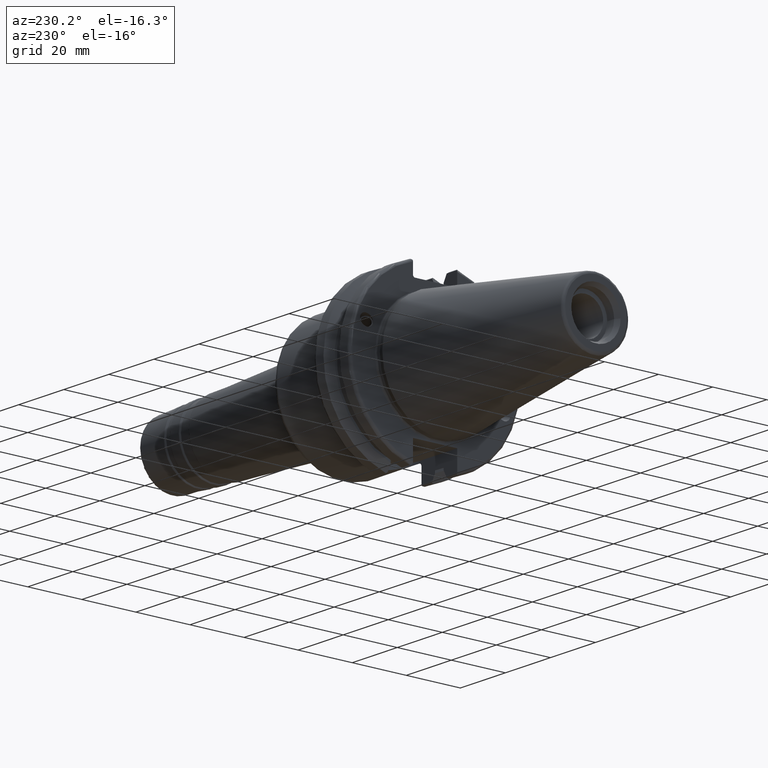
[diagram: clean part render]
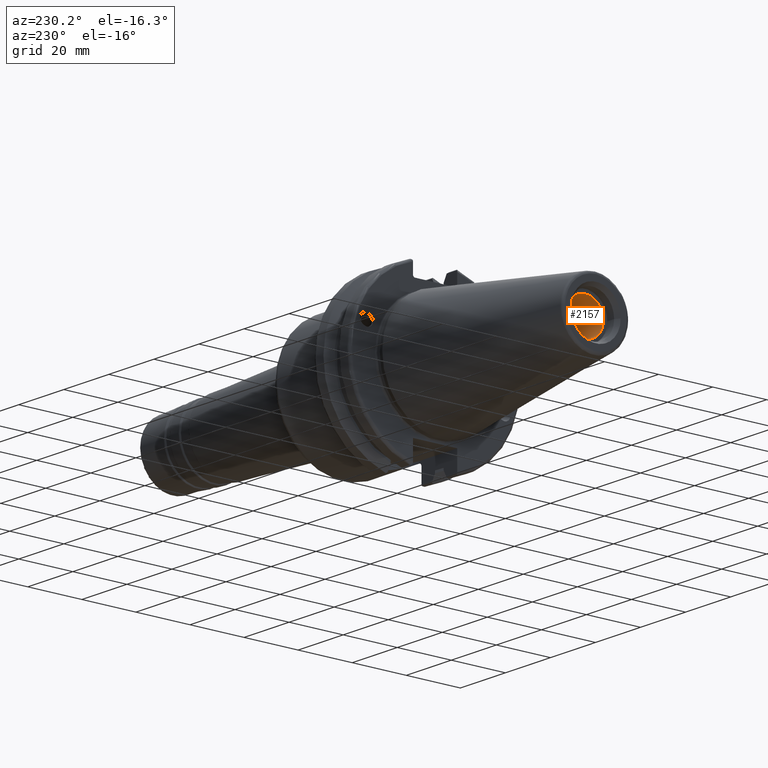
[diagram: same view with one face highlighted and labeled with its STEP entity id]
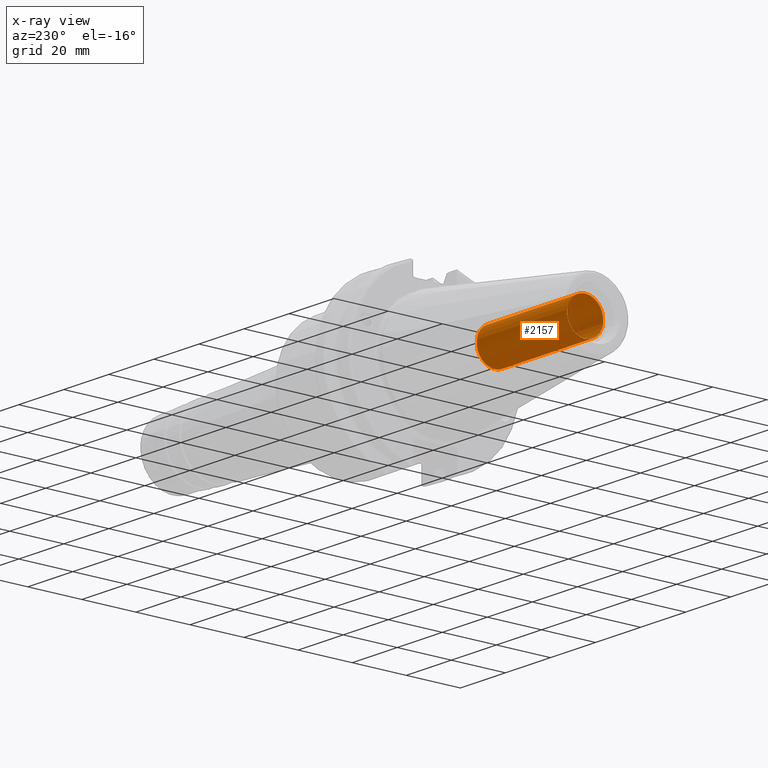
[diagram: x-ray of the same camera — body ghosted, the highlighted face saturated]
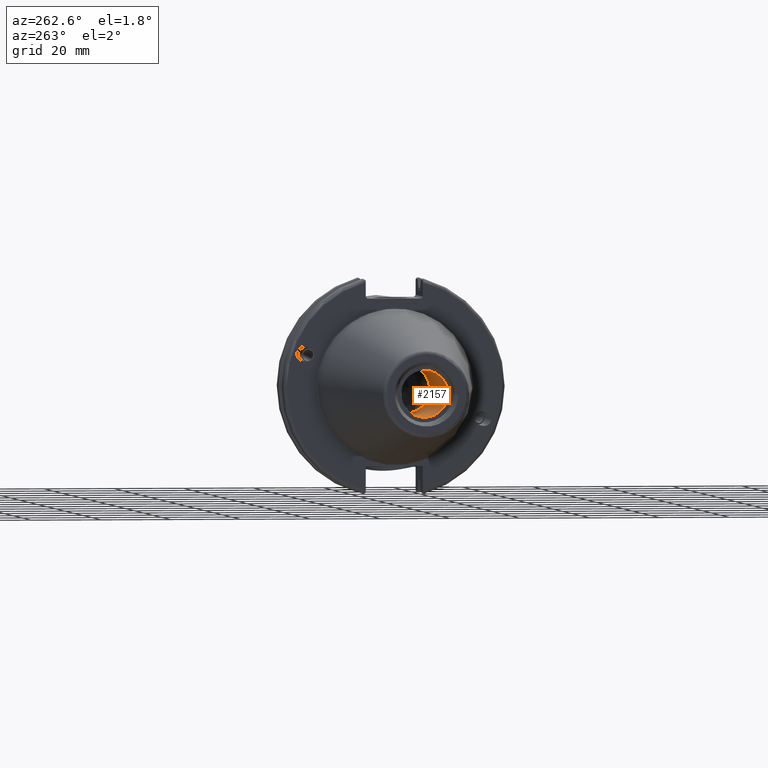
[diagram: same view with one face highlighted and labeled with its STEP entity id]
A machine part, auxiliary view. The second image highlights one B-rep face of the part: STEP entity #2157.
The next image is the same camera in x-ray: the body ghosted, the highlighted face saturated — about 1% of this face is hidden behind the body in this view.
A second angle (auxiliary view) of the same face is appended — the face is thin or edge-on in the first view.
In plain terms, the highlighted cylindrical surface (bore or boss wall) has radius 6.6929 mm, axis along (-1, 0, 0).
Its self-contained STEP definition (entity closure, byte-faithful):
#173=CYLINDRICAL_SURFACE('',#2438,6.6929);
#246=FACE_OUTER_BOUND('',#363,.T.);
#363=EDGE_LOOP('',(#1804,#1805,#1806,#1807,#1808));
#471=LINE('',#3948,#572);
#572=VECTOR('',#3019,6.6929);
#749=CIRCLE('',#2436,6.6929);
#750=CIRCLE('',#2437,6.6929);
#751=CIRCLE('',#2439,6.6929);
#968=VERTEX_POINT('',#3940);
#969=VERTEX_POINT('',#3941);
#970=VERTEX_POINT('',#3946);
#1269=EDGE_CURVE('',#968,#969,#749,.T.);
#1271=EDGE_CURVE('',#969,#968,#750,.T.);
#1272=EDGE_CURVE('',#970,#970,#751,.T.);
#1273=EDGE_CURVE('',#970,#969,#471,.T.);
#1804=ORIENTED_EDGE('',*,*,#1272,.F.);
#1805=ORIENTED_EDGE('',*,*,#1273,.T.);
#1806=ORIENTED_EDGE('',*,*,#1269,.F.);
#1807=ORIENTED_EDGE('',*,*,#1271,.F.);
#1808=ORIENTED_EDGE('',*,*,#1273,.F.);
#2157=ADVANCED_FACE('',(#246),#173,.F.);
#2436=AXIS2_PLACEMENT_3D('',#3942,#3010,#3011);
#2437=AXIS2_PLACEMENT_3D('',#3944,#3013,#3014);
#2438=AXIS2_PLACEMENT_3D('',#3945,#3015,#3016);
#2439=AXIS2_PLACEMENT_3D('',#3947,#3017,#3018);
#3010=DIRECTION('center_axis',(-1.,0.,0.));
#3011=DIRECTION('ref_axis',(0.,0.,1.));
#3013=DIRECTION('center_axis',(-1.,0.,0.));
#3014=DIRECTION('ref_axis',(0.,0.,1.));
#3015=DIRECTION('center_axis',(-1.,0.,0.));
#3016=DIRECTION('ref_axis',(0.,0.,1.));
#3017=DIRECTION('center_axis',(1.,0.,0.));
#3018=DIRECTION('ref_axis',(0.,0.,1.));
#3019=DIRECTION('',(1.,0.,0.));
#3940=CARTESIAN_POINT('',(-23.25,0.,6.6929));
#3941=CARTESIAN_POINT('',(-23.25,-8.19643856201332E-16,-6.6929));
#3942=CARTESIAN_POINT('Origin',(-23.25,0.,0.));
#3944=CARTESIAN_POINT('Origin',(-23.25,0.,0.));
#3945=CARTESIAN_POINT('Origin',(-45.75,0.,0.));
#3946=CARTESIAN_POINT('',(-63.45,8.19643856201332E-16,-6.6929));
#3947=CARTESIAN_POINT('Origin',(-63.45,0.,0.));
#3948=CARTESIAN_POINT('',(-45.75,-8.19643856201332E-16,-6.6929));